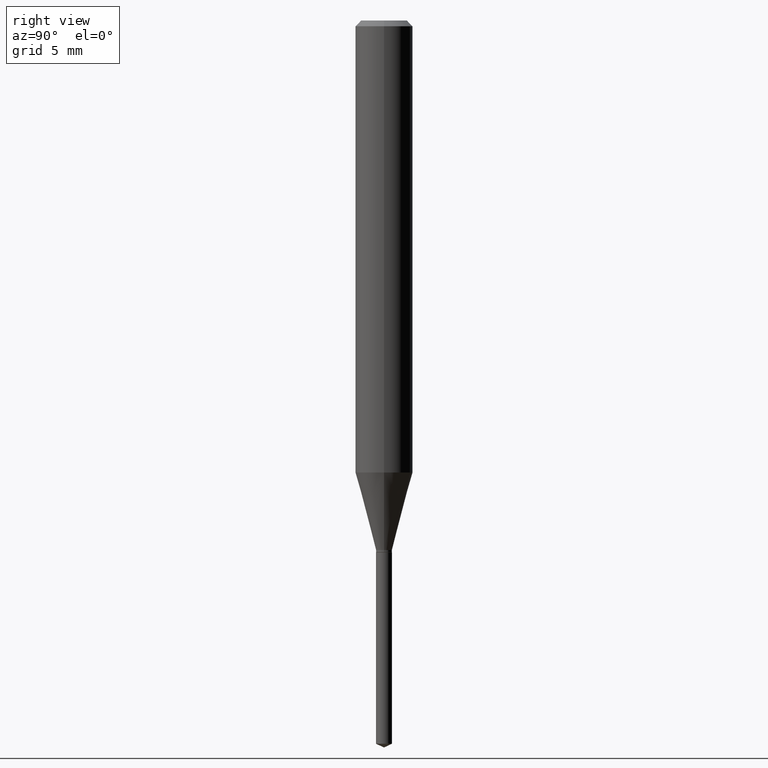
[diagram: clean part render]
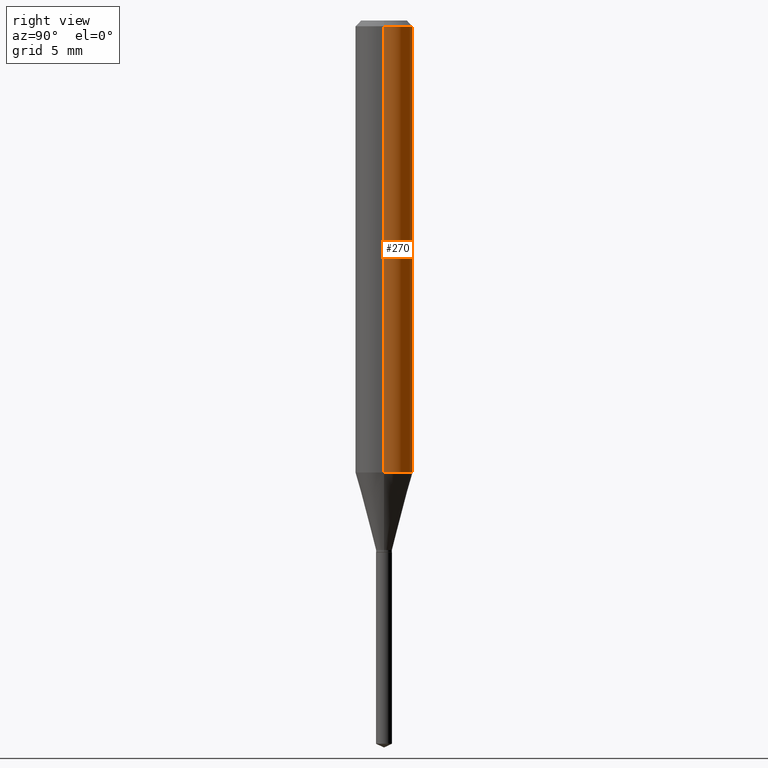
[diagram: same view with one face highlighted and labeled with its STEP entity id]
A machine part, right view. The second image highlights one B-rep face of the part: STEP entity #270.
In plain terms, the highlighted cylindrical surface (edge-blend (fillet) strip) has radius 1.4999 mm, axis along (-0, 0, 1).
Its self-contained STEP definition (entity closure, byte-faithful):
#2 = EDGE_CURVE ( 'NONE', #241, #392, #281, .T. ) ;
#14 = CARTESIAN_POINT ( 'NONE',  ( 0.05905000000000005383, -4.123439461173744271E-16, 2.879382386107502672E-30 ) ) ;
#25 = DIRECTION ( 'NONE',  ( 1.000000000000000000, -6.982962677686266711E-15, 4.876176775795935793E-29 ) ) ;
#67 = CARTESIAN_POINT ( 'NONE',  ( 2.888098660104663328E-31, -4.123439461173779030E-17, -0.01181000000000006871 ) ) ;
#79 = CARTESIAN_POINT ( 'NONE',  ( 0.05904999999999999832, -4.535783407291118600E-16, -0.01181000000000006871 ) ) ;
#87 = ORIENTED_EDGE ( 'NONE', *, *, #253, .F. ) ;
#91 = DIRECTION ( 'NONE',  ( -2.445468806185136877E-29, 3.491481338843145188E-15, 1.000000000000000000 ) ) ;
#95 = DIRECTION ( 'NONE',  ( -2.445468806185136877E-29, 3.491481338843145188E-15, 1.000000000000000000 ) ) ;
#102 = FACE_OUTER_BOUND ( 'NONE', #464, .T. ) ;
#124 = ORIENTED_EDGE ( 'NONE', *, *, #2, .T. ) ;
#130 = AXIS2_PLACEMENT_3D ( 'NONE', #395, #180, #25 ) ;
#156 = CIRCLE ( 'NONE', #263, 0.05905000000000010935 ) ;
#175 = VECTOR ( 'NONE', #91, 39.37007874015748143 ) ;
#176 = VECTOR ( 'NONE', #95, 39.37007874015748143 ) ;
#180 = DIRECTION ( 'NONE',  ( -2.445468806185136597E-29, 3.491481338843145583E-15, 1.000000000000000000 ) ) ;
#216 = EDGE_CURVE ( 'NONE', #432, #392, #471, .T. ) ;
#224 = CYLINDRICAL_SURFACE ( 'NONE', #130, 0.05905000000000005383 ) ;
#241 = VERTEX_POINT ( 'NONE', #292 ) ;
#253 = EDGE_CURVE ( 'NONE', #473, #432, #299, .T. ) ;
#256 = ORIENTED_EDGE ( 'NONE', *, *, #216, .F. ) ;
#258 = DIRECTION ( 'NONE',  ( 1.000000000000000000, -6.982962677686266711E-15, 0.000000000000000000 ) ) ;
#262 = AXIS2_PLACEMENT_3D ( 'NONE', #67, #477, #258 ) ;
#263 = AXIS2_PLACEMENT_3D ( 'NONE', #331, #437, #325 ) ;
#270 = ADVANCED_FACE ( 'NONE', ( #102 ), #224, .T. ) ;
#281 = LINE ( 'NONE', #428, #175 ) ;
#282 = ORIENTED_EDGE ( 'NONE', *, *, #327, .T. ) ;
#292 = CARTESIAN_POINT ( 'NONE',  ( -0.05905000000000010935, -2.828345109801851148E-15, -0.9302414305168089648 ) ) ;
#299 = LINE ( 'NONE', #14, #176 ) ;
#325 = DIRECTION ( 'NONE',  ( 1.000000000000000000, -6.982962677686267499E-15, 0.000000000000000000 ) ) ;
#327 = EDGE_CURVE ( 'NONE', #473, #241, #156, .T. ) ;
#331 = CARTESIAN_POINT ( 'NONE',  ( 2.274876400549894550E-29, -3.247920595268191429E-15, -0.9302414305168089648 ) ) ;
#345 = CARTESIAN_POINT ( 'NONE',  ( -0.05904999999999999832, -1.225002009473624692E-15, -0.01181000000000006871 ) ) ;
#376 = CARTESIAN_POINT ( 'NONE',  ( 0.05905000000000010935, -3.660264541385565561E-15, -0.9302414305168089648 ) ) ;
#392 = VERTEX_POINT ( 'NONE', #345 ) ;
#395 = CARTESIAN_POINT ( 'NONE',  ( 0.000000000000000000, 0.000000000000000000, 0.000000000000000000 ) ) ;
#428 = CARTESIAN_POINT ( 'NONE',  ( -0.05905000000000005383, 4.195754854663395423E-16, -2.904631170795524694E-30 ) ) ;
#432 = VERTEX_POINT ( 'NONE', #79 ) ;
#437 = DIRECTION ( 'NONE',  ( -2.445468806185136597E-29, 3.491481338843145583E-15, 1.000000000000000000 ) ) ;
#464 = EDGE_LOOP ( 'NONE', ( #282, #124, #256, #87 ) ) ;
#471 = CIRCLE ( 'NONE', #262, 0.05904999999999999832 ) ;
#473 = VERTEX_POINT ( 'NONE', #376 ) ;
#477 = DIRECTION ( 'NONE',  ( -2.445468806185136597E-29, 3.491481338843145583E-15, 1.000000000000000000 ) ) ;